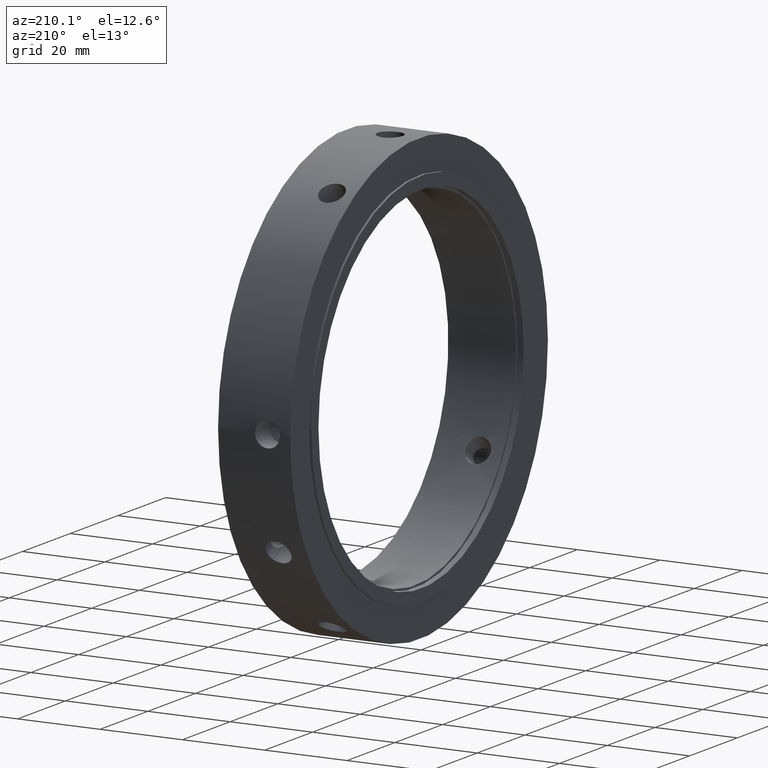
[diagram: clean part render]
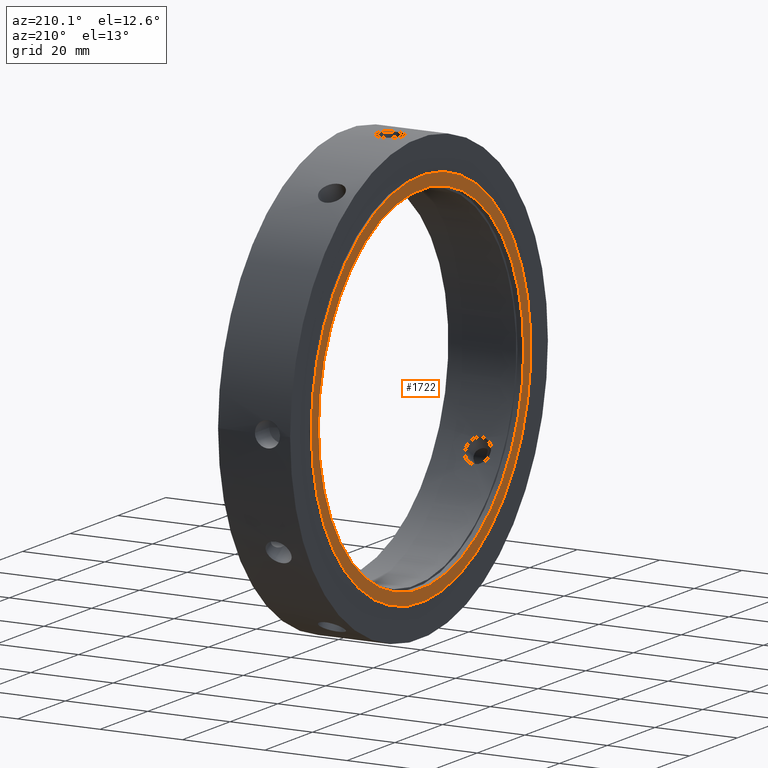
[diagram: same view with one face highlighted and labeled with its STEP entity id]
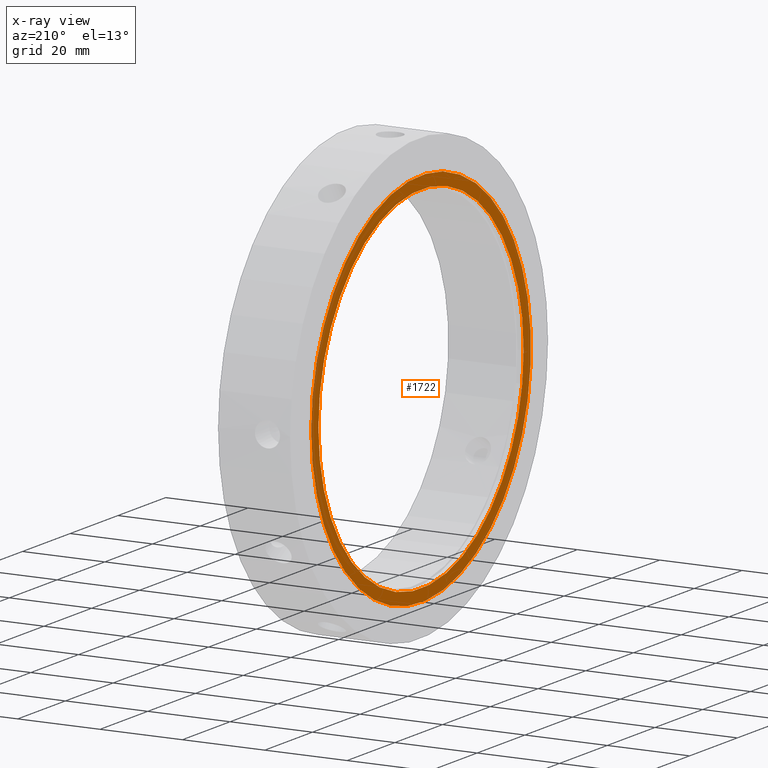
[diagram: x-ray of the same camera — body ghosted, the highlighted face saturated]
A machine part, auxiliary view. The second image highlights one B-rep face of the part: STEP entity #1722.
The next image is the same camera in x-ray: the body ghosted, the highlighted face saturated — about 0% of this face is hidden behind the body in this view.
In plain terms, the highlighted planar face has unit normal (-1, 0, 0).
Its self-contained STEP definition (entity closure, byte-faithful):
#1688=CARTESIAN_POINT('',(-1.221245E-014,43.0,0.0));
#1689=VERTEX_POINT('',#1688);
#1690=CARTESIAN_POINT('',(-1.221245E-014,0.0,0.0));
#1691=DIRECTION('',(1.0,0.0,0.0));
#1692=DIRECTION('',(0.0,1.0,0.0));
#1693=AXIS2_PLACEMENT_3D('',#1690,#1691,#1692);
#1694=CIRCLE('',#1693,43.0);
#1695=EDGE_CURVE('',#1689,#1689,#1694,.T.);
#1703=CARTESIAN_POINT('',(-1.276756E-014,44.5,0.0));
#1704=DIRECTION('',(-1.0,0.0,0.0));
#1705=DIRECTION('',(0.0,0.0,1.0));
#1706=AXIS2_PLACEMENT_3D('',#1703,#1704,#1705);
#1707=PLANE('',#1706);
#1708=CARTESIAN_POINT('',(-1.332268E-014,46.000000000000007,0.0));
#1709=VERTEX_POINT('',#1708);
#1710=CARTESIAN_POINT('',(-1.332268E-014,0.0,0.0));
#1711=DIRECTION('',(1.0,0.0,0.0));
#1712=DIRECTION('',(0.0,1.0,0.0));
#1713=AXIS2_PLACEMENT_3D('',#1710,#1711,#1712);
#1714=CIRCLE('',#1713,46.000000000000007);
#1715=EDGE_CURVE('',#1709,#1709,#1714,.T.);
#1716=ORIENTED_EDGE('',*,*,#1715,.F.);
#1717=EDGE_LOOP('',(#1716));
#1718=FACE_OUTER_BOUND('',#1717,.T.);
#1719=ORIENTED_EDGE('',*,*,#1695,.T.);
#1720=EDGE_LOOP('',(#1719));
#1721=FACE_BOUND('',#1720,.T.);
#1722=ADVANCED_FACE('',(#1718,#1721),#1707,.T.);